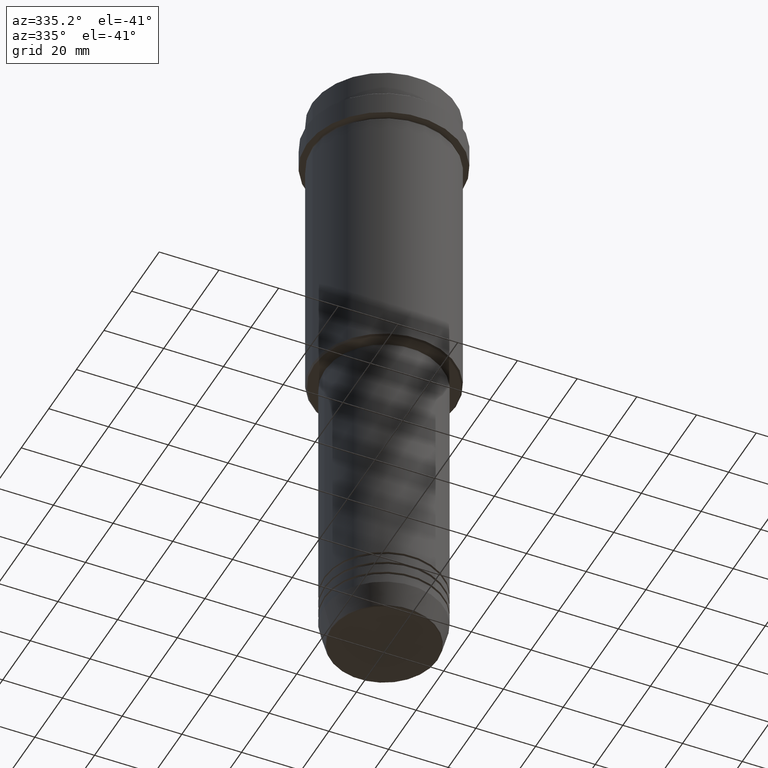
[diagram: clean part render]
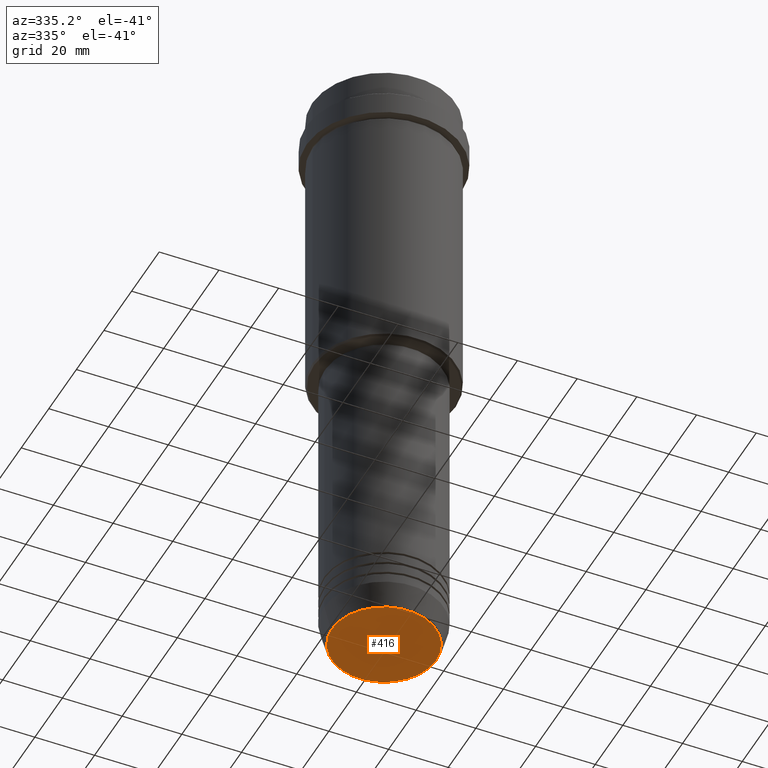
[diagram: same view with one face highlighted and labeled with its STEP entity id]
A machine part, auxiliary view. The second image highlights one B-rep face of the part: STEP entity #416.
In plain terms, the highlighted planar face has unit normal (0, -0, 1).
Its self-contained STEP definition (entity closure, byte-faithful):
#58 = AXIS2_PLACEMENT_3D ( 'NONE', #1414, #941, #1147 ) ;
#85 = VERTEX_POINT ( 'NONE', #349 ) ;
#89 = VERTEX_POINT ( 'NONE', #783 ) ;
#101 = ORIENTED_EDGE ( 'NONE', *, *, #797, .T. ) ;
#193 = CIRCLE ( 'NONE', #628, 17.47274296656153325 ) ;
#220 = AXIS2_PLACEMENT_3D ( 'NONE', #728, #1165, #847 ) ;
#289 = DIRECTION ( 'NONE',  ( 1.000000000000000000, 0.000000000000000000, 0.000000000000000000 ) ) ;
#301 = FACE_OUTER_BOUND ( 'NONE', #525, .T. ) ;
#349 = CARTESIAN_POINT ( 'NONE',  ( -17.47274296656153325, 2.169366823916867714E-15, -210.0000000000000284 ) ) ;
#416 = ADVANCED_FACE ( 'NONE', ( #301 ), #1274, .F. ) ;
#525 = EDGE_LOOP ( 'NONE', ( #101, #639 ) ) ;
#628 = AXIS2_PLACEMENT_3D ( 'NONE', #827, #1262, #289 ) ;
#639 = ORIENTED_EDGE ( 'NONE', *, *, #1272, .T. ) ;
#728 = CARTESIAN_POINT ( 'NONE',  ( 0.000000000000000000, 0.000000000000000000, -210.0000000000000284 ) ) ;
#783 = CARTESIAN_POINT ( 'NONE',  ( 17.47274296656153325, 0.000000000000000000, -210.0000000000000284 ) ) ;
#797 = EDGE_CURVE ( 'NONE', #89, #85, #193, .T. ) ;
#827 = CARTESIAN_POINT ( 'NONE',  ( 0.000000000000000000, 0.000000000000000000, -210.0000000000000284 ) ) ;
#847 = DIRECTION ( 'NONE',  ( 1.000000000000000000, 0.000000000000000000, 0.000000000000000000 ) ) ;
#941 = DIRECTION ( 'NONE',  ( 0.000000000000000000, 0.000000000000000000, -1.000000000000000000 ) ) ;
#1130 = CIRCLE ( 'NONE', #58, 17.47274296656153325 ) ;
#1147 = DIRECTION ( 'NONE',  ( 1.000000000000000000, 0.000000000000000000, 0.000000000000000000 ) ) ;
#1165 = DIRECTION ( 'NONE',  ( 0.000000000000000000, -0.000000000000000000, 1.000000000000000000 ) ) ;
#1262 = DIRECTION ( 'NONE',  ( 0.000000000000000000, 0.000000000000000000, -1.000000000000000000 ) ) ;
#1272 = EDGE_CURVE ( 'NONE', #85, #89, #1130, .T. ) ;
#1274 = PLANE ( 'NONE',  #220 ) ;
#1414 = CARTESIAN_POINT ( 'NONE',  ( 0.000000000000000000, 0.000000000000000000, -210.0000000000000284 ) ) ;